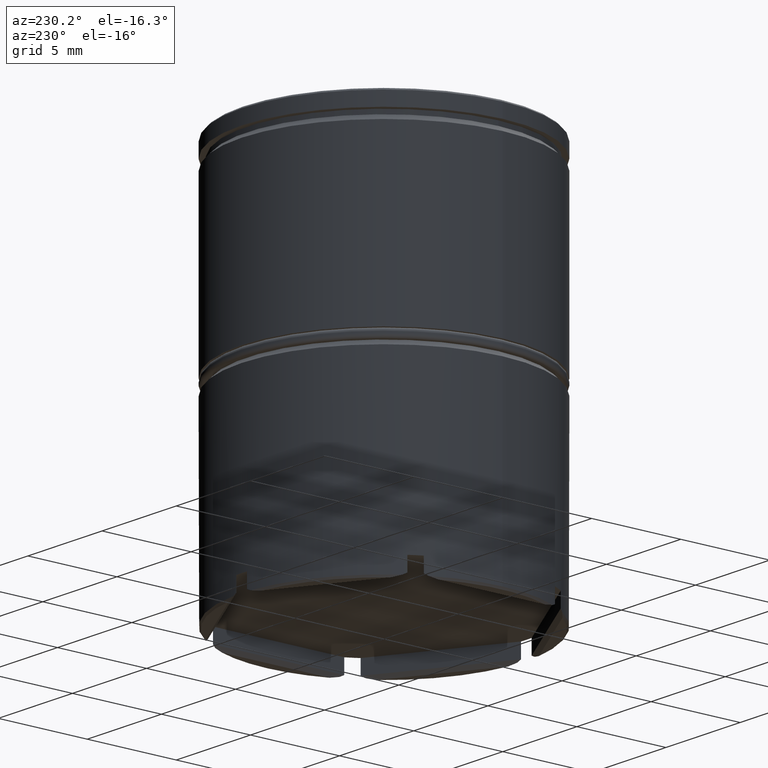
[diagram: clean part render]
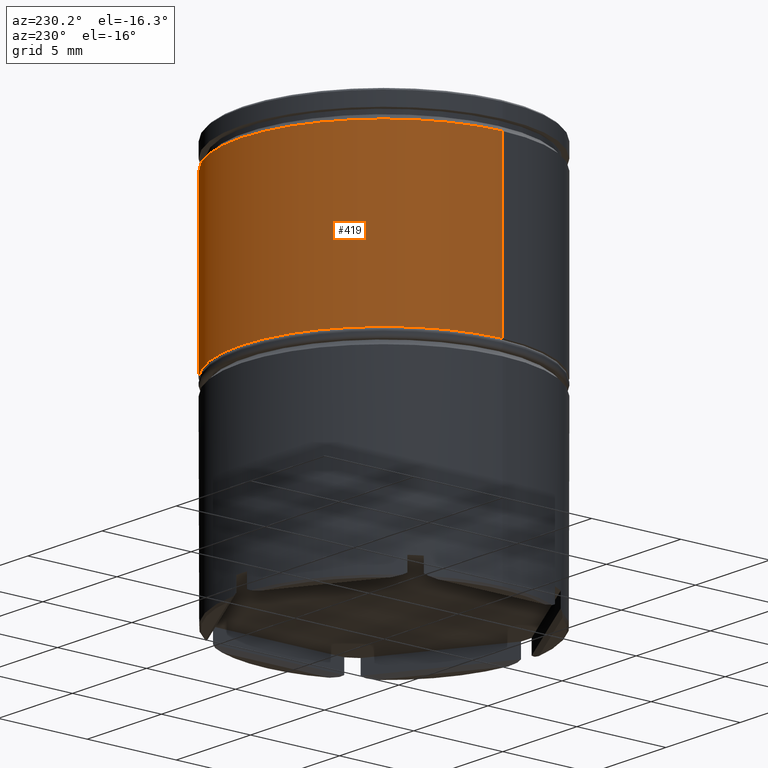
[diagram: same view with one face highlighted and labeled with its STEP entity id]
A machine part, auxiliary view. The second image highlights one B-rep face of the part: STEP entity #419.
In plain terms, the highlighted cylindrical surface (partial cylindrical patch) has radius 8 mm, axis along (-0, -0, 1).
Its self-contained STEP definition (entity closure, byte-faithful):
#1 = ORIENTED_EDGE ( 'NONE', *, *, #1474, .T. ) ;
#2 = EDGE_CURVE ( 'NONE', #1384, #11, #844, .T. ) ;
#11 = VERTEX_POINT ( 'NONE', #1335 ) ;
#36 = CYLINDRICAL_SURFACE ( 'NONE', #90, 8.000000000000000000 ) ;
#37 = CARTESIAN_POINT ( 'NONE',  ( 0.000000000000000000, 0.000000000000000000, -10.75000000000000000 ) ) ;
#75 = VERTEX_POINT ( 'NONE', #614 ) ;
#86 = VECTOR ( 'NONE', #211, 1000.000000000000000 ) ;
#90 = AXIS2_PLACEMENT_3D ( 'NONE', #300, #1323, #1200 ) ;
#211 = DIRECTION ( 'NONE',  ( -0.000000000000000000, -0.000000000000000000, 1.000000000000000000 ) ) ;
#300 = CARTESIAN_POINT ( 'NONE',  ( 0.000000000000000000, 0.000000000000000000, 0.000000000000000000 ) ) ;
#419 = ADVANCED_FACE ( 'NONE', ( #1315 ), #36, .T. ) ;
#428 = VECTOR ( 'NONE', #1480, 1000.000000000000000 ) ;
#455 = CIRCLE ( 'NONE', #942, 8.000000000000000000 ) ;
#483 = CIRCLE ( 'NONE', #1433, 8.000000000000000000 ) ;
#484 = VERTEX_POINT ( 'NONE', #1059 ) ;
#500 = DIRECTION ( 'NONE',  ( 0.000000000000000000, 0.000000000000000000, -1.000000000000000000 ) ) ;
#560 = EDGE_CURVE ( 'NONE', #75, #11, #483, .T. ) ;
#602 = ORIENTED_EDGE ( 'NONE', *, *, #872, .T. ) ;
#614 = CARTESIAN_POINT ( 'NONE',  ( -8.000000000000000000, 9.797174393178825657E-16, -1.425000000000003597 ) ) ;
#720 = DIRECTION ( 'NONE',  ( 1.000000000000000000, 0.000000000000000000, 0.000000000000000000 ) ) ;
#844 = LINE ( 'NONE', #1364, #86 ) ;
#872 = EDGE_CURVE ( 'NONE', #484, #75, #1257, .T. ) ;
#942 = AXIS2_PLACEMENT_3D ( 'NONE', #37, #1430, #1596 ) ;
#979 = CARTESIAN_POINT ( 'NONE',  ( -8.000000000000000000, 9.797174393178825657E-16, 0.000000000000000000 ) ) ;
#1036 = ORIENTED_EDGE ( 'NONE', *, *, #560, .T. ) ;
#1059 = CARTESIAN_POINT ( 'NONE',  ( -8.000000000000000000, 9.797174393178825657E-16, -10.75000000000000000 ) ) ;
#1149 = ORIENTED_EDGE ( 'NONE', *, *, #2, .F. ) ;
#1200 = DIRECTION ( 'NONE',  ( 1.000000000000000000, 0.000000000000000000, 0.000000000000000000 ) ) ;
#1257 = LINE ( 'NONE', #979, #428 ) ;
#1260 = EDGE_LOOP ( 'NONE', ( #1, #602, #1036, #1149 ) ) ;
#1315 = FACE_OUTER_BOUND ( 'NONE', #1260, .T. ) ;
#1323 = DIRECTION ( 'NONE',  ( -0.000000000000000000, -0.000000000000000000, 1.000000000000000000 ) ) ;
#1335 = CARTESIAN_POINT ( 'NONE',  ( 8.000000000000000000, 0.000000000000000000, -1.425000000000003597 ) ) ;
#1364 = CARTESIAN_POINT ( 'NONE',  ( 8.000000000000000000, 0.000000000000000000, 0.000000000000000000 ) ) ;
#1384 = VERTEX_POINT ( 'NONE', #1545 ) ;
#1430 = DIRECTION ( 'NONE',  ( -0.000000000000000000, -0.000000000000000000, 1.000000000000000000 ) ) ;
#1433 = AXIS2_PLACEMENT_3D ( 'NONE', #1586, #500, #720 ) ;
#1474 = EDGE_CURVE ( 'NONE', #1384, #484, #455, .T. ) ;
#1480 = DIRECTION ( 'NONE',  ( -0.000000000000000000, -0.000000000000000000, 1.000000000000000000 ) ) ;
#1545 = CARTESIAN_POINT ( 'NONE',  ( 8.000000000000000000, 0.000000000000000000, -10.75000000000000000 ) ) ;
#1586 = CARTESIAN_POINT ( 'NONE',  ( 0.000000000000000000, 0.000000000000000000, -1.425000000000003597 ) ) ;
#1596 = DIRECTION ( 'NONE',  ( 1.000000000000000000, 0.000000000000000000, 0.000000000000000000 ) ) ;